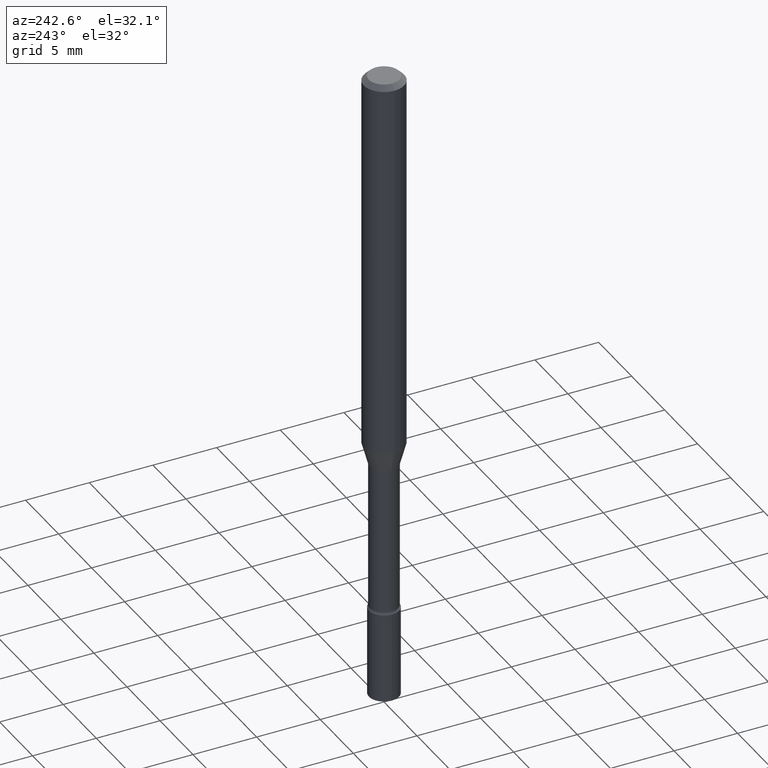
[diagram: clean part render]
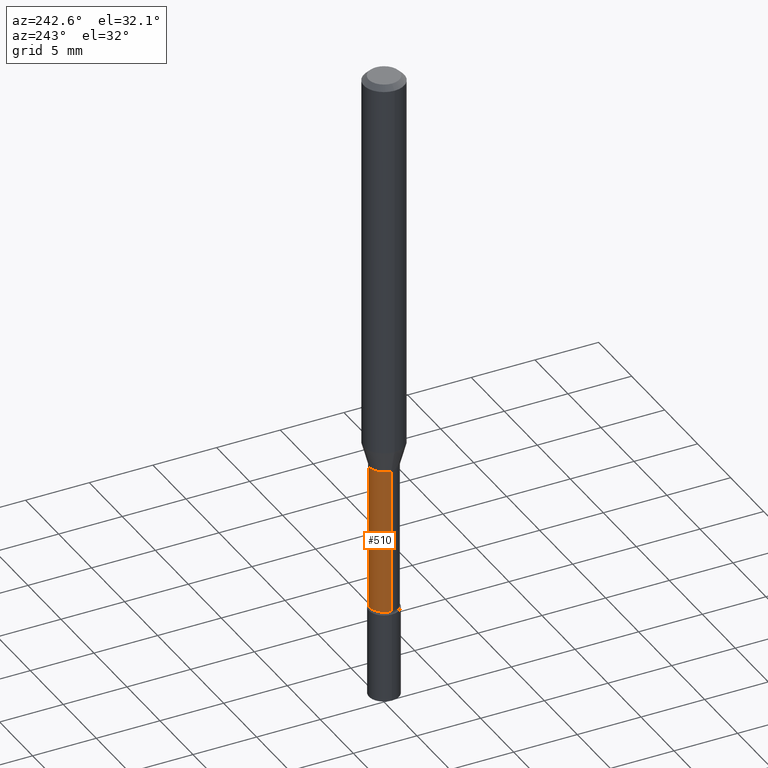
[diagram: same view with one face highlighted and labeled with its STEP entity id]
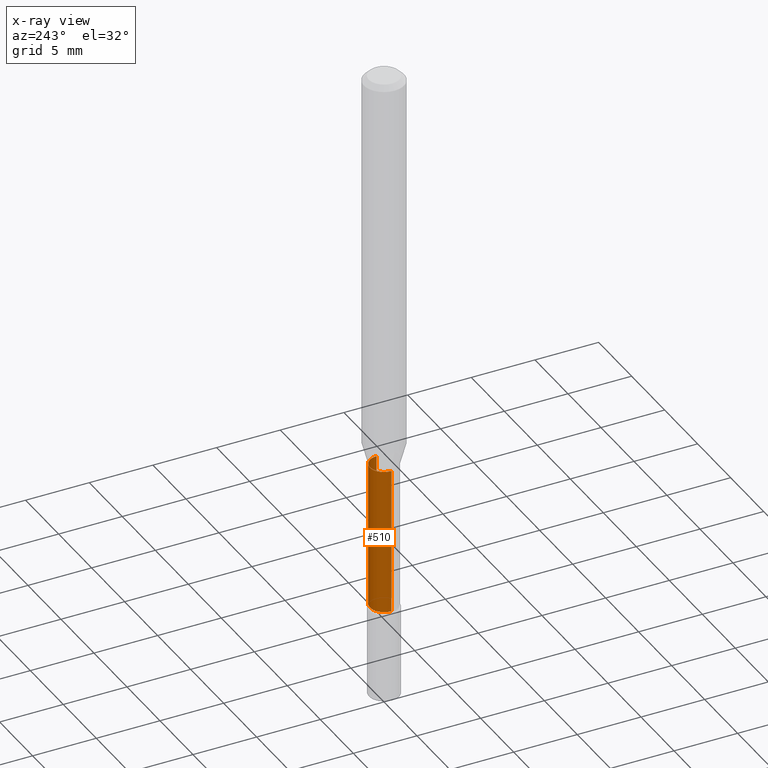
[diagram: x-ray of the same camera — body ghosted, the highlighted face saturated]
A machine part, auxiliary view. The second image highlights one B-rep face of the part: STEP entity #510.
The next image is the same camera in x-ray: the body ghosted, the highlighted face saturated — about 0% of this face is hidden behind the body in this view.
In plain terms, the highlighted cylindrical surface (edge-blend (fillet) strip) has radius 1.11 mm, axis along (-0, 0, 1).
Its self-contained STEP definition (entity closure, byte-faithful):
#5 = VERTEX_POINT ( 'NONE', #342 ) ;
#10 = VECTOR ( 'NONE', #117, 39.37007874015748143 ) ;
#34 = VERTEX_POINT ( 'NONE', #182 ) ;
#37 = VERTEX_POINT ( 'NONE', #381 ) ;
#47 = VERTEX_POINT ( 'NONE', #340 ) ;
#48 = EDGE_CURVE ( 'NONE', #37, #5, #509, .T. ) ;
#64 = FACE_OUTER_BOUND ( 'NONE', #198, .T. ) ;
#100 = AXIS2_PLACEMENT_3D ( 'NONE', #243, #287, #206 ) ;
#103 = CARTESIAN_POINT ( 'NONE',  ( 0.000000000000000000, 0.000000000000000000, 0.000000000000000000 ) ) ;
#116 = CARTESIAN_POINT ( 'NONE',  ( 0.04369999999999997498, -3.051554690148896707E-16, 2.130889251022822588E-30 ) ) ;
#117 = DIRECTION ( 'NONE',  ( -2.445468806185136877E-29, 3.491481338843145188E-15, 1.000000000000000000 ) ) ;
#124 = ORIENTED_EDGE ( 'NONE', *, *, #48, .T. ) ;
#140 = CARTESIAN_POINT ( 'NONE',  ( -0.04369999999999997498, 3.105071755271636034E-16, -2.149574634441392424E-30 ) ) ;
#141 = CIRCLE ( 'NONE', #161, 0.04370000000000000273 ) ;
#142 = CYLINDRICAL_SURFACE ( 'NONE', #372, 0.04369999999999997498 ) ;
#144 = DIRECTION ( 'NONE',  ( -2.445468806185136597E-29, 3.491481338843145583E-15, 1.000000000000000000 ) ) ;
#161 = AXIS2_PLACEMENT_3D ( 'NONE', #376, #354, #439 ) ;
#181 = VECTOR ( 'NONE', #503, 39.37007874015748143 ) ;
#182 = CARTESIAN_POINT ( 'NONE',  ( 0.04369999999999994722, -6.283524801340691903E-15, -1.712273030308291144 ) ) ;
#193 = EDGE_CURVE ( 'NONE', #47, #5, #141, .T. ) ;
#198 = EDGE_LOOP ( 'NONE', ( #345, #124, #474, #367 ) ) ;
#206 = DIRECTION ( 'NONE',  ( 1.000000000000000000, -6.982962677686272233E-15, 0.000000000000000000 ) ) ;
#243 = CARTESIAN_POINT ( 'NONE',  ( 4.187310283291023133E-29, -5.978369332325802035E-15, -1.712273030308291144 ) ) ;
#256 = DIRECTION ( 'NONE',  ( 1.000000000000000000, -6.982962677686266711E-15, 4.876176775795935232E-29 ) ) ;
#287 = DIRECTION ( 'NONE',  ( -2.445468806185136597E-29, 3.491481338843145583E-15, 1.000000000000000000 ) ) ;
#333 = EDGE_CURVE ( 'NONE', #34, #47, #512, .T. ) ;
#340 = CARTESIAN_POINT ( 'NONE',  ( 0.04370000000000000273, -4.697350964179957317E-15, -1.257974787463810973 ) ) ;
#342 = CARTESIAN_POINT ( 'NONE',  ( -0.04370000000000000273, -4.874775238218270843E-15, -1.257974787463810973 ) ) ;
#345 = ORIENTED_EDGE ( 'NONE', *, *, #402, .T. ) ;
#354 = DIRECTION ( 'NONE',  ( -2.445468806185136597E-29, 3.491481338843145583E-15, 1.000000000000000000 ) ) ;
#367 = ORIENTED_EDGE ( 'NONE', *, *, #333, .F. ) ;
#370 = CIRCLE ( 'NONE', #100, 0.04369999999999994722 ) ;
#372 = AXIS2_PLACEMENT_3D ( 'NONE', #103, #144, #256 ) ;
#376 = CARTESIAN_POINT ( 'NONE',  ( 3.076338101710126374E-29, -4.392195495165068238E-15, -1.257974787463810973 ) ) ;
#381 = CARTESIAN_POINT ( 'NONE',  ( -0.04369999999999994722, -5.673149584409622388E-15, -1.712273030308291144 ) ) ;
#402 = EDGE_CURVE ( 'NONE', #34, #37, #370, .T. ) ;
#439 = DIRECTION ( 'NONE',  ( 1.000000000000000000, -6.982962677686263555E-15, 0.000000000000000000 ) ) ;
#474 = ORIENTED_EDGE ( 'NONE', *, *, #193, .F. ) ;
#503 = DIRECTION ( 'NONE',  ( -2.445468806185136877E-29, 3.491481338843145188E-15, 1.000000000000000000 ) ) ;
#509 = LINE ( 'NONE', #140, #181 ) ;
#510 = ADVANCED_FACE ( 'NONE', ( #64 ), #142, .T. ) ;
#512 = LINE ( 'NONE', #116, #10 ) ;